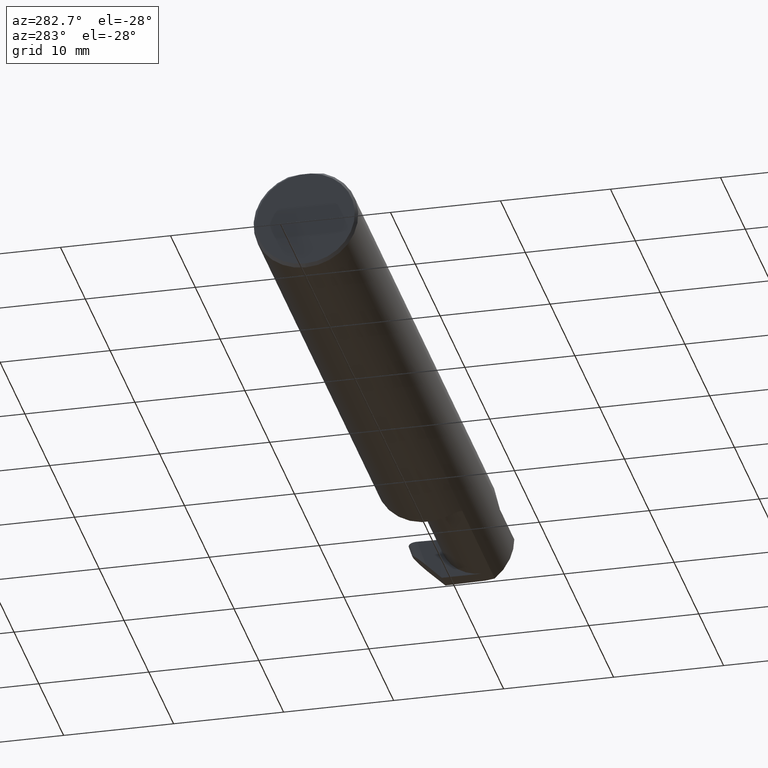
[diagram: clean part render]
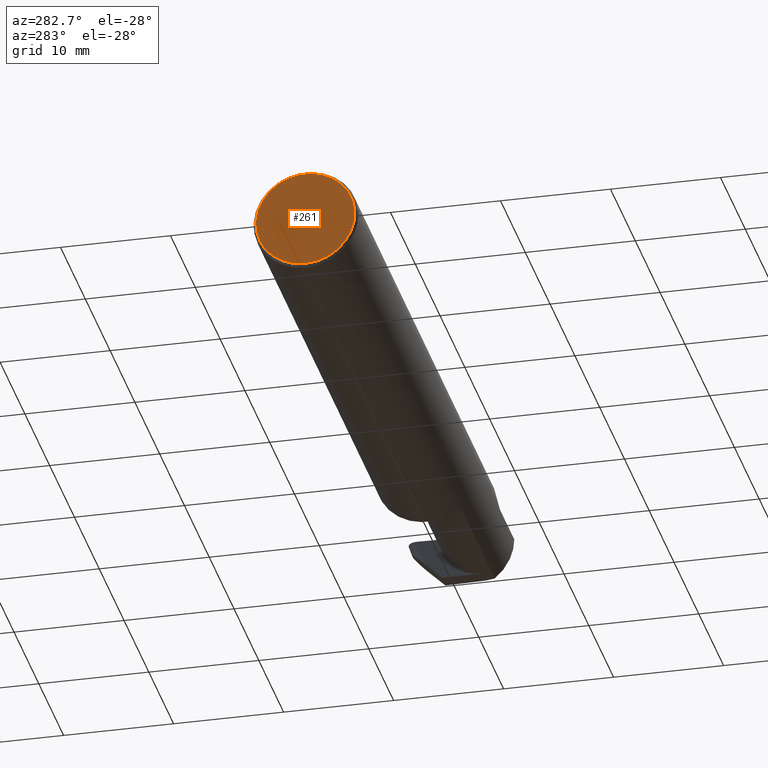
[diagram: same view with one face highlighted and labeled with its STEP entity id]
A machine part, auxiliary view. The second image highlights one B-rep face of the part: STEP entity #261.
In plain terms, the highlighted planar face has unit normal (1, 0, 0).
Its self-contained STEP definition (entity closure, byte-faithful):
#1 = EDGE_CURVE ( 'NONE', #362, #313, #595, .T. ) ;
#6 = DIRECTION ( 'NONE',  ( 1.000000000000000000, 0.000000000000000000, 0.000000000000000000 ) ) ;
#23 = EDGE_CURVE ( 'NONE', #539, #362, #72, .T. ) ;
#31 = DIRECTION ( 'NONE',  ( 0.000000000000000000, 0.000000000000000000, -1.000000000000000000 ) ) ;
#72 = LINE ( 'NONE', #288, #177 ) ;
#78 = AXIS2_PLACEMENT_3D ( 'NONE', #110, #6, #504 ) ;
#79 = DIRECTION ( 'NONE',  ( 0.000000000000000000, 0.000000000000000000, -1.000000000000000000 ) ) ;
#110 = CARTESIAN_POINT ( 'NONE',  ( 0.000000000000000000, 0.000000000000000000, 0.000000000000000000 ) ) ;
#177 = VECTOR ( 'NONE', #414, 39.37007874015748143 ) ;
#242 = EDGE_LOOP ( 'NONE', ( #434, #468, #291 ) ) ;
#261 = ADVANCED_FACE ( 'NONE', ( #453 ), #443, .F. ) ;
#287 = DIRECTION ( 'NONE',  ( -1.000000000000000000, -0.000000000000000000, -0.000000000000000000 ) ) ;
#288 = CARTESIAN_POINT ( 'NONE',  ( 0.000000000000000000, 0.1873499999999998500, 0.1763499999999999235 ) ) ;
#291 = ORIENTED_EDGE ( 'NONE', *, *, #422, .T. ) ;
#313 = VERTEX_POINT ( 'NONE', #348 ) ;
#340 = CARTESIAN_POINT ( 'NONE',  ( 0.000000000000000000, 0.01880691362239451242, 0.1763499999999999235 ) ) ;
#348 = CARTESIAN_POINT ( 'NONE',  ( 0.000000000000000000, 0.000000000000000000, -0.1773500000000005072 ) ) ;
#354 = CARTESIAN_POINT ( 'NONE',  ( 0.000000000000000000, 0.000000000000000000, 0.000000000000000000 ) ) ;
#362 = VERTEX_POINT ( 'NONE', #340 ) ;
#363 = CIRCLE ( 'NONE', #458, 0.1773500000000005072 ) ;
#414 = DIRECTION ( 'NONE',  ( -0.000000000000000000, 1.000000000000000000, -0.000000000000000000 ) ) ;
#422 = EDGE_CURVE ( 'NONE', #313, #539, #363, .T. ) ;
#434 = ORIENTED_EDGE ( 'NONE', *, *, #23, .T. ) ;
#443 = PLANE ( 'NONE',  #78 ) ;
#453 = FACE_OUTER_BOUND ( 'NONE', #242, .T. ) ;
#458 = AXIS2_PLACEMENT_3D ( 'NONE', #683, #287, #79 ) ;
#468 = ORIENTED_EDGE ( 'NONE', *, *, #1, .T. ) ;
#482 = CARTESIAN_POINT ( 'NONE',  ( 0.000000000000000000, -0.01880691362239451242, 0.1763499999999999235 ) ) ;
#504 = DIRECTION ( 'NONE',  ( 0.000000000000000000, 0.000000000000000000, -1.000000000000000000 ) ) ;
#539 = VERTEX_POINT ( 'NONE', #482 ) ;
#595 = CIRCLE ( 'NONE', #605, 0.1773500000000005072 ) ;
#605 = AXIS2_PLACEMENT_3D ( 'NONE', #354, #624, #31 ) ;
#624 = DIRECTION ( 'NONE',  ( -1.000000000000000000, -0.000000000000000000, -0.000000000000000000 ) ) ;
#683 = CARTESIAN_POINT ( 'NONE',  ( 0.000000000000000000, 0.000000000000000000, 0.000000000000000000 ) ) ;